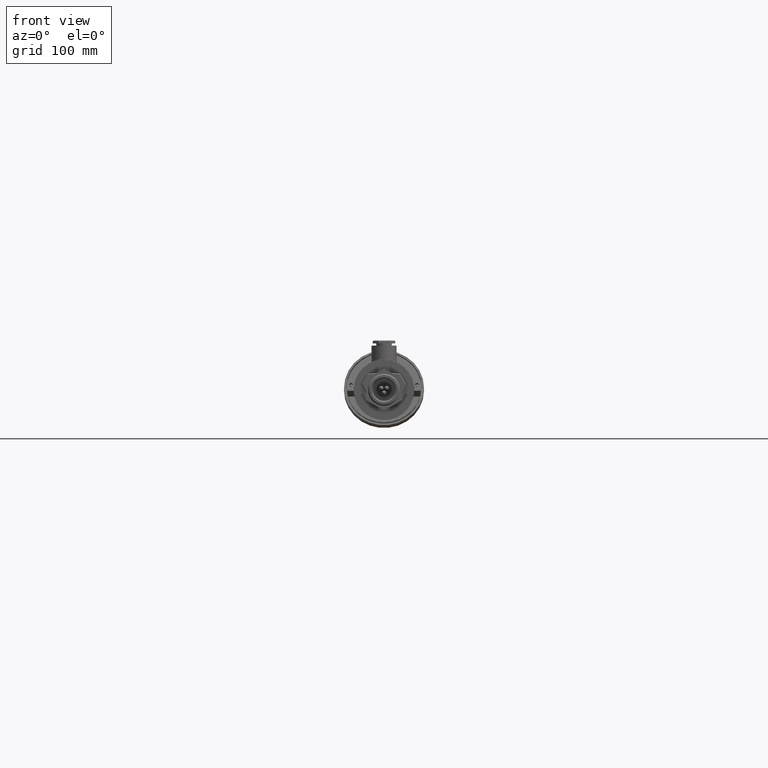
[diagram: clean part render]
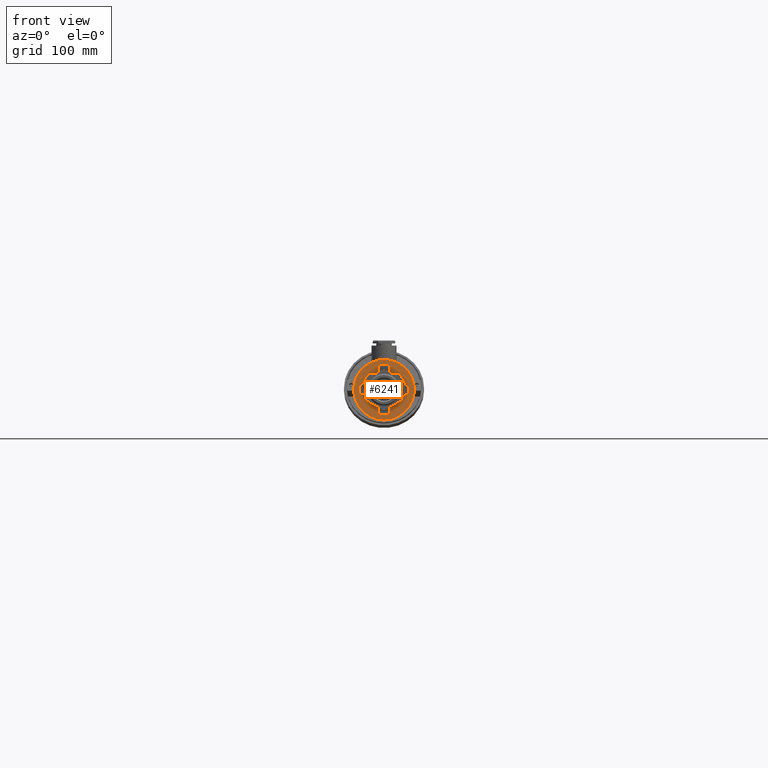
[diagram: same view with one face highlighted and labeled with its STEP entity id]
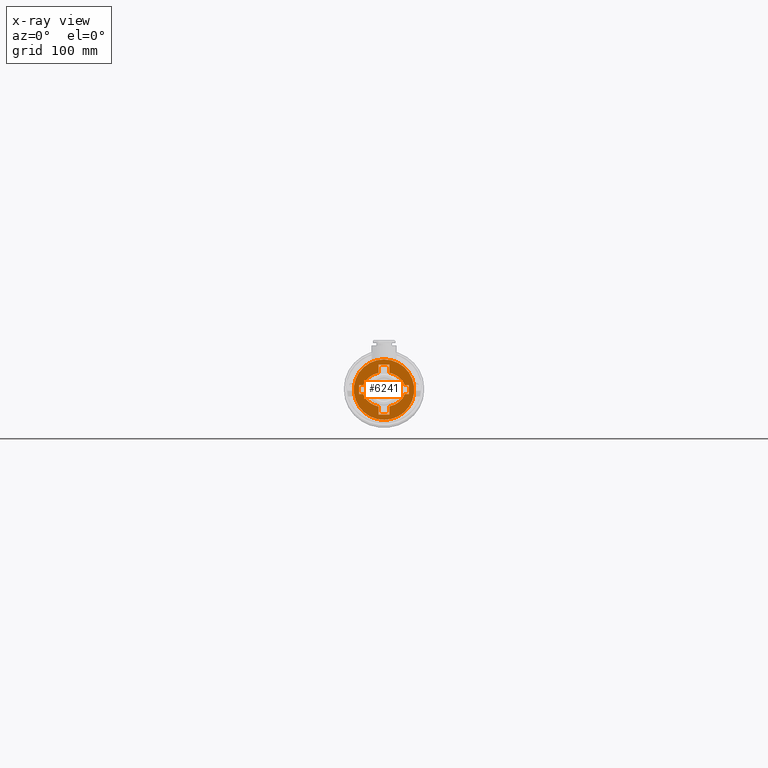
[diagram: x-ray of the same camera — body ghosted, the highlighted face saturated]
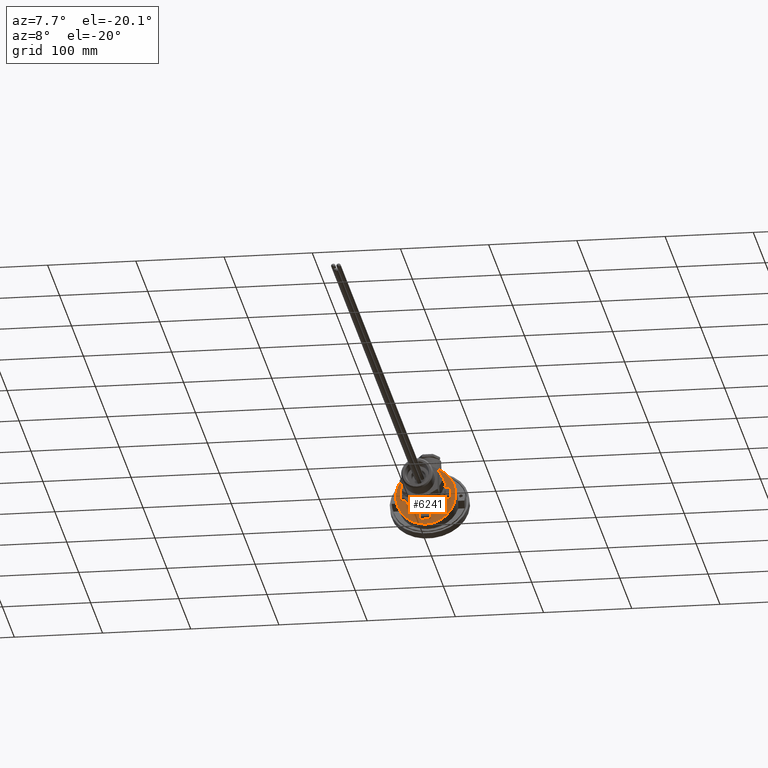
[diagram: same view with one face highlighted and labeled with its STEP entity id]
A machine part, front view. The second image highlights one B-rep face of the part: STEP entity #6241.
The next image is the same camera in x-ray: the body ghosted, the highlighted face saturated — about 0% of this face is hidden behind the body in this view.
A second angle (auxiliary view) of the same face is appended — the face is thin or edge-on in the first view.
In plain terms, the highlighted planar face has unit normal (0, -1, 0).
Its self-contained STEP definition (entity closure, byte-faithful):
#314 = VECTOR ( 'NONE', #881, 1000.000000000000000 ) ;
#327 = VECTOR ( 'NONE', #2448, 1000.000000000000000 ) ;
#520 = CARTESIAN_POINT ( 'NONE',  ( 0.000000000000000000, 37.50000000000000000, 0.000000000000000000 ) ) ;
#615 = DIRECTION ( 'NONE',  ( 0.000000000000000000, -1.000000000000000000, 0.000000000000000000 ) ) ;
#758 = EDGE_CURVE ( 'NONE', #11153, #14423, #6235, .T. ) ;
#881 = DIRECTION ( 'NONE',  ( 0.000000000000000000, 0.000000000000000000, -1.000000000000000000 ) ) ;
#970 = CARTESIAN_POINT ( 'NONE',  ( 0.000000000000000000, 37.50000000000000000, -5.000000000000000000 ) ) ;
#1104 = DIRECTION ( 'NONE',  ( 0.000000000000000000, 0.000000000000000000, -1.000000000000000000 ) ) ;
#1133 = EDGE_CURVE ( 'NONE', #3018, #12216, #4470, .T. ) ;
#1250 = VECTOR ( 'NONE', #8613, 1000.000000000000000 ) ;
#1282 = CARTESIAN_POINT ( 'NONE',  ( -5.999999999999996447, 37.50000000000000000, 18.88079381276115498 ) ) ;
#1331 = CARTESIAN_POINT ( 'NONE',  ( 6.000000000000000000, 37.50000000000000000, 18.88079381276115853 ) ) ;
#1472 = VECTOR ( 'NONE', #6598, 1000.000000000000000 ) ;
#1525 = VERTEX_POINT ( 'NONE', #19318 ) ;
#1706 = CIRCLE ( 'NONE', #14851, 34.00000000000000000 ) ;
#1834 = EDGE_CURVE ( 'NONE', #7920, #6169, #17632, .T. ) ;
#1994 = EDGE_CURVE ( 'NONE', #16947, #4728, #1706, .T. ) ;
#2035 = CARTESIAN_POINT ( 'NONE',  ( 23.19763301534864297, 37.50000000000000000, -4.999999999999955591 ) ) ;
#2047 = ORIENTED_EDGE ( 'NONE', *, *, #1994, .T. ) ;
#2448 = DIRECTION ( 'NONE',  ( -1.000000000000000000, 0.000000000000000000, 0.000000000000000000 ) ) ;
#2533 = CARTESIAN_POINT ( 'NONE',  ( 0.000000000000000000, 37.50000000000000000, -34.00000000000000000 ) ) ;
#2567 = EDGE_CURVE ( 'NONE', #4728, #16947, #17860, .T. ) ;
#2601 = CARTESIAN_POINT ( 'NONE',  ( -14.60944205950087671, 37.50000000000000000, -17.07464825311283008 ) ) ;
#2799 = EDGE_CURVE ( 'NONE', #1525, #14423, #10911, .T. ) ;
#2986 = EDGE_CURVE ( 'NONE', #10569, #5831, #14325, .T. ) ;
#3018 = VERTEX_POINT ( 'NONE', #14235 ) ;
#3091 = ORIENTED_EDGE ( 'NONE', *, *, #2799, .F. ) ;
#3104 = VERTEX_POINT ( 'NONE', #5984 ) ;
#3208 = DIRECTION ( 'NONE',  ( 0.000000000000000000, 0.000000000000000000, -1.000000000000000000 ) ) ;
#3614 = CARTESIAN_POINT ( 'NONE',  ( 0.000000000000000000, 37.50000000000000000, 4.999999999999944045 ) ) ;
#3786 = PLANE ( 'NONE',  #9130 ) ;
#3861 = CARTESIAN_POINT ( 'NONE',  ( -28.00000000000000000, 37.50000000000000000, 0.000000000000000000 ) ) ;
#3893 = FACE_BOUND ( 'NONE', #15734, .T. ) ;
#3944 = EDGE_CURVE ( 'NONE', #13167, #15300, #14125, .T. ) ;
#4313 = CARTESIAN_POINT ( 'NONE',  ( -23.19763301534863942, 37.50000000000000000, 4.999999999999997335 ) ) ;
#4458 = CARTESIAN_POINT ( 'NONE',  ( 20.91768595780440876, 37.50000000000000000, -11.98305031083721239 ) ) ;
#4470 = LINE ( 'NONE', #15140, #16849 ) ;
#4693 = DIRECTION ( 'NONE',  ( 0.000000000000000000, 0.000000000000000000, -1.000000000000000000 ) ) ;
#4728 = VERTEX_POINT ( 'NONE', #2533 ) ;
#4936 = CARTESIAN_POINT ( 'NONE',  ( -28.00000000000000000, 37.50000000000000000, 5.000000000000000000 ) ) ;
#4956 = CARTESIAN_POINT ( 'NONE',  ( 28.00000000000000000, 37.50000000000000000, 0.000000000000000000 ) ) ;
#5067 = FACE_OUTER_BOUND ( 'NONE', #9813, .T. ) ;
#5080 = DIRECTION ( 'NONE',  ( 0.000000000000000000, 0.000000000000000000, -1.000000000000000000 ) ) ;
#5293 = CARTESIAN_POINT ( 'NONE',  ( -6.000000000000000000, 37.50000000000000000, -37.96109933179273099 ) ) ;
#5337 = ORIENTED_EDGE ( 'NONE', *, *, #9786, .F. ) ;
#5482 = CARTESIAN_POINT ( 'NONE',  ( -5.999999999999996447, 37.50000000000000000, 18.88079381276115498 ) ) ;
#5485 = ORIENTED_EDGE ( 'NONE', *, *, #15657, .T. ) ;
#5623 = ORIENTED_EDGE ( 'NONE', *, *, #18279, .T. ) ;
#5641 = CARTESIAN_POINT ( 'NONE',  ( -5.999999999999998224, 37.50000000000000000, -18.88079381276115853 ) ) ;
#5812 = CARTESIAN_POINT ( 'NONE',  ( 6.000000000000001776, 37.50000000000000000, -18.88079381276114432 ) ) ;
#5831 = VERTEX_POINT ( 'NONE', #16948 ) ;
#5847 = VERTEX_POINT ( 'NONE', #2035 ) ;
#5984 = CARTESIAN_POINT ( 'NONE',  ( -5.999999999999998224, 37.50000000000000000, -18.88079381276115853 ) ) ;
#6156 = ORIENTED_EDGE ( 'NONE', *, *, #3944, .F. ) ;
#6169 = VERTEX_POINT ( 'NONE', #12695 ) ;
#6235 = LINE ( 'NONE', #16532, #6526 ) ;
#6241 = ADVANCED_FACE ( 'NONE', ( #3893, #5067 ), #3786, .T. ) ;
#6242 = ORIENTED_EDGE ( 'NONE', *, *, #10040, .F. ) ;
#6512 = VECTOR ( 'NONE', #15973, 1000.000000000000000 ) ;
#6526 = VECTOR ( 'NONE', #3208, 1000.000000000000000 ) ;
#6598 = DIRECTION ( 'NONE',  ( 1.000000000000000000, 0.000000000000000000, 0.000000000000000000 ) ) ;
#7036 = EDGE_CURVE ( 'NONE', #15300, #3018, #17927, .T. ) ;
#7188 = CARTESIAN_POINT ( 'NONE',  ( 0.000000000000000000, 37.50000000000000000, 0.000000000000000000 ) ) ;
#7638 = VERTEX_POINT ( 'NONE', #15935 ) ;
#7920 = VERTEX_POINT ( 'NONE', #1282 ) ;
#8166 = DIRECTION ( 'NONE',  ( -1.000000000000000000, 0.000000000000000000, 0.000000000000000000 ) ) ;
#8475 = DIRECTION ( 'NONE',  ( 0.000000000000000000, -1.000000000000000000, 0.000000000000000000 ) ) ;
#8526 = CARTESIAN_POINT ( 'NONE',  ( -6.000000000000000000, 37.50000000000000000, 28.00000000000000000 ) ) ;
#8613 = DIRECTION ( 'NONE',  ( 0.000000000000000000, 0.000000000000000000, 1.000000000000000000 ) ) ;
#8652 = ORIENTED_EDGE ( 'NONE', *, *, #14439, .F. ) ;
#8947 = VERTEX_POINT ( 'NONE', #9167 ) ;
#9089 = ORIENTED_EDGE ( 'NONE', *, *, #758, .T. ) ;
#9130 = AXIS2_PLACEMENT_3D ( 'NONE', #520, #615, #9863 ) ;
#9167 = CARTESIAN_POINT ( 'NONE',  ( 28.00000000000000000, 37.50000000000000000, -4.999999999999944045 ) ) ;
#9303 = EDGE_CURVE ( 'NONE', #7920, #12216, #14876, .T. ) ;
#9502 = EDGE_CURVE ( 'NONE', #3104, #1525, #12223, .T. ) ;
#9786 = EDGE_CURVE ( 'NONE', #7638, #3104, #16242, .T. ) ;
#9813 = EDGE_LOOP ( 'NONE', ( #15544, #2047 ) ) ;
#9863 = DIRECTION ( 'NONE',  ( 0.000000000000000000, -0.000000000000000000, -1.000000000000000000 ) ) ;
#10022 = EDGE_CURVE ( 'NONE', #5847, #8947, #12580, .T. ) ;
#10040 = EDGE_CURVE ( 'NONE', #8947, #18580, #14061, .T. ) ;
#10141 = CARTESIAN_POINT ( 'NONE',  ( 23.19763301534864297, 37.50000000000000000, -4.999999999999955591 ) ) ;
#10200 = CARTESIAN_POINT ( 'NONE',  ( -14.60944205950086783, 37.50000000000000000, 17.07464825311282297 ) ) ;
#10249 = ORIENTED_EDGE ( 'NONE', *, *, #2986, .F. ) ;
#10377 = ORIENTED_EDGE ( 'NONE', *, *, #7036, .F. ) ;
#10394 = ORIENTED_EDGE ( 'NONE', *, *, #9303, .T. ) ;
#10541 = CARTESIAN_POINT ( 'NONE',  ( 23.19763301534865008, 37.50000000000000000, 4.999999999999941380 ) ) ;
#10569 = VERTEX_POINT ( 'NONE', #4936 ) ;
#10729 = DIRECTION ( 'NONE',  ( -1.000000000000000000, 0.000000000000000000, 0.000000000000000000 ) ) ;
#10732 = CARTESIAN_POINT ( 'NONE',  ( 6.000000000000001776, 37.50000000000000000, -28.00000000000000000 ) ) ;
#10822 = DIRECTION ( 'NONE',  ( 1.000000000000000000, 0.000000000000000000, 0.000000000000000000 ) ) ;
#10911 = LINE ( 'NONE', #12473, #11588 ) ;
#11011 = CARTESIAN_POINT ( 'NONE',  ( 23.19763301534865008, 37.50000000000000000, 4.999999999999941380 ) ) ;
#11153 = VERTEX_POINT ( 'NONE', #12813 ) ;
#11588 = VECTOR ( 'NONE', #10822, 1000.000000000000000 ) ;
#11708 = VECTOR ( 'NONE', #8166, 1000.000000000000000 ) ;
#11821 = VECTOR ( 'NONE', #17193, 1000.000000000000000 ) ;
#11907 = VECTOR ( 'NONE', #15181, 1000.000000000000000 ) ;
#12216 = VERTEX_POINT ( 'NONE', #8526 ) ;
#12223 = LINE ( 'NONE', #18119, #14651 ) ;
#12393 = LINE ( 'NONE', #17099, #11708 ) ;
#12473 = CARTESIAN_POINT ( 'NONE',  ( -5.999999999999998224, 37.50000000000000000, -28.00000000000000000 ) ) ;
#12580 = LINE ( 'NONE', #15724, #1472 ) ;
#12695 = CARTESIAN_POINT ( 'NONE',  ( -23.19763301534863942, 37.50000000000000000, 4.999999999999997335 ) ) ;
#12813 = CARTESIAN_POINT ( 'NONE',  ( 6.000000000000001776, 37.50000000000000000, -18.88079381276114432 ) ) ;
#13167 = VERTEX_POINT ( 'NONE', #11011 ) ;
#13180 = CARTESIAN_POINT ( 'NONE',  ( -20.91768595780440521, 37.50000000000000000, -11.98305031083723193 ) ) ;
#13326 = CARTESIAN_POINT ( 'NONE',  ( -20.91768595780439810, 37.50000000000000000, 11.98305031083723371 ) ) ;
#13553 = ORIENTED_EDGE ( 'NONE', *, *, #10022, .F. ) ;
#13567 = CARTESIAN_POINT ( 'NONE',  ( 20.91768595780443007, 37.50000000000000000, 11.98305031083720706 ) ) ;
#13693 = ORIENTED_EDGE ( 'NONE', *, *, #1834, .F. ) ;
#14019 = ORIENTED_EDGE ( 'NONE', *, *, #17726, .F. ) ;
#14061 = LINE ( 'NONE', #4956, #11821 ) ;
#14125 =( BOUNDED_CURVE ( )  B_SPLINE_CURVE ( 3, ( #10541, #13567, #16306, #17887 ),
 .UNSPECIFIED., .F., .F. ) 
 B_SPLINE_CURVE_WITH_KNOTS ( ( 4, 4 ),
 ( 0.2593064562727731004, 1.318116071652817300 ),
 .UNSPECIFIED. ) 
 CURVE ( )  GEOMETRIC_REPRESENTATION_ITEM ( )  RATIONAL_B_SPLINE_CURVE ( ( 1.000000000000000000, 0.9087385381518293670, 0.9087385381518293670, 1.000000000000000000 ) ) 
 REPRESENTATION_ITEM ( '' )  );
#14235 = CARTESIAN_POINT ( 'NONE',  ( 6.000000000000000000, 37.50000000000000000, 28.00000000000000000 ) ) ;
#14325 = LINE ( 'NONE', #3861, #314 ) ;
#14397 = AXIS2_PLACEMENT_3D ( 'NONE', #7188, #8475, #1104 ) ;
#14423 = VERTEX_POINT ( 'NONE', #10732 ) ;
#14439 = EDGE_CURVE ( 'NONE', #6169, #10569, #12393, .T. ) ;
#14651 = VECTOR ( 'NONE', #4693, 1000.000000000000000 ) ;
#14851 = AXIS2_PLACEMENT_3D ( 'NONE', #18503, #15368, #5080 ) ;
#14875 = CARTESIAN_POINT ( 'NONE',  ( 6.000000000000000000, 37.50000000000000000, -37.96109933179273099 ) ) ;
#14876 = LINE ( 'NONE', #5293, #6512 ) ;
#14929 = CARTESIAN_POINT ( 'NONE',  ( 14.60944205950088026, 37.50000000000000000, -17.07464825311282297 ) ) ;
#14971 = CARTESIAN_POINT ( 'NONE',  ( 4.163799117101000559E-15, 37.50000000000000000, 34.00000000000000000 ) ) ;
#14975 = LINE ( 'NONE', #3614, #11907 ) ;
#15140 = CARTESIAN_POINT ( 'NONE',  ( 6.000000000000000000, 37.50000000000000000, 28.00000000000000000 ) ) ;
#15181 = DIRECTION ( 'NONE',  ( 1.000000000000000000, 0.000000000000000000, 0.000000000000000000 ) ) ;
#15300 = VERTEX_POINT ( 'NONE', #1331 ) ;
#15368 = DIRECTION ( 'NONE',  ( 0.000000000000000000, -1.000000000000000000, 0.000000000000000000 ) ) ;
#15544 = ORIENTED_EDGE ( 'NONE', *, *, #2567, .T. ) ;
#15657 = EDGE_CURVE ( 'NONE', #7638, #5831, #15974, .T. ) ;
#15724 = CARTESIAN_POINT ( 'NONE',  ( 0.000000000000000000, 37.50000000000000000, -4.999999999999944045 ) ) ;
#15734 = EDGE_LOOP ( 'NONE', ( #5485, #10249, #8652, #13693, #10394, #15857, #10377, #6156, #5623, #6242, #13553, #14019, #9089, #3091, #18438, #5337 ) ) ;
#15857 = ORIENTED_EDGE ( 'NONE', *, *, #1133, .F. ) ;
#15935 = CARTESIAN_POINT ( 'NONE',  ( -23.19763301534864297, 37.50000000000000000, -4.999999999999984013 ) ) ;
#15973 = DIRECTION ( 'NONE',  ( 0.000000000000000000, 0.000000000000000000, 1.000000000000000000 ) ) ;
#15974 = LINE ( 'NONE', #970, #327 ) ;
#16242 =( BOUNDED_CURVE ( )  B_SPLINE_CURVE ( 3, ( #18977, #13180, #2601, #5641 ),
 .UNSPECIFIED., .F., .F. ) 
 B_SPLINE_CURVE_WITH_KNOTS ( ( 4, 4 ),
 ( 3.400899109862568714, 4.459708725242610861 ),
 .UNSPECIFIED. ) 
 CURVE ( )  GEOMETRIC_REPRESENTATION_ITEM ( )  RATIONAL_B_SPLINE_CURVE ( ( 1.000000000000000000, 0.9087385381518295890, 0.9087385381518295890, 1.000000000000000000 ) ) 
 REPRESENTATION_ITEM ( '' )  );
#16306 = CARTESIAN_POINT ( 'NONE',  ( 14.60944205950089625, 37.50000000000000000, 17.07464825311281942 ) ) ;
#16532 = CARTESIAN_POINT ( 'NONE',  ( 6.000000000000001776, 37.50000000000000000, 49.50199999999998823 ) ) ;
#16849 = VECTOR ( 'NONE', #10729, 1000.000000000000000 ) ;
#16947 = VERTEX_POINT ( 'NONE', #14971 ) ;
#16948 = CARTESIAN_POINT ( 'NONE',  ( -28.00000000000000000, 37.50000000000000000, -5.000000000000000000 ) ) ;
#17079 =( BOUNDED_CURVE ( )  B_SPLINE_CURVE ( 3, ( #5812, #14929, #4458, #10141 ),
 .UNSPECIFIED., .F., .F. ) 
 B_SPLINE_CURVE_WITH_KNOTS ( ( 4, 4 ),
 ( 4.965069235526767599, 6.023878850906810634 ),
 .UNSPECIFIED. ) 
 CURVE ( )  GEOMETRIC_REPRESENTATION_ITEM ( )  RATIONAL_B_SPLINE_CURVE ( ( 1.000000000000000000, 0.9087385381518295890, 0.9087385381518295890, 1.000000000000000000 ) ) 
 REPRESENTATION_ITEM ( '' )  );
#17099 = CARTESIAN_POINT ( 'NONE',  ( 0.000000000000000000, 37.50000000000000000, 5.000000000000000000 ) ) ;
#17193 = DIRECTION ( 'NONE',  ( -0.000000000000000000, 0.000000000000000000, 1.000000000000000000 ) ) ;
#17623 = CARTESIAN_POINT ( 'NONE',  ( 28.00000000000000000, 37.50000000000000000, 4.999999999999944045 ) ) ;
#17632 =( BOUNDED_CURVE ( )  B_SPLINE_CURVE ( 3, ( #5482, #10200, #13326, #4313 ),
 .UNSPECIFIED., .F., .F. ) 
 B_SPLINE_CURVE_WITH_KNOTS ( ( 4, 4 ),
 ( 1.823476581936974483, 2.882286197317015297 ),
 .UNSPECIFIED. ) 
 CURVE ( )  GEOMETRIC_REPRESENTATION_ITEM ( )  RATIONAL_B_SPLINE_CURVE ( ( 1.000000000000000000, 0.9087385381518299221, 0.9087385381518299221, 1.000000000000000000 ) ) 
 REPRESENTATION_ITEM ( '' )  );
#17726 = EDGE_CURVE ( 'NONE', #11153, #5847, #17079, .T. ) ;
#17860 = CIRCLE ( 'NONE', #14397, 34.00000000000000000 ) ;
#17887 = CARTESIAN_POINT ( 'NONE',  ( 6.000000000000000000, 37.50000000000000000, 18.88079381276115853 ) ) ;
#17927 = LINE ( 'NONE', #14875, #1250 ) ;
#18119 = CARTESIAN_POINT ( 'NONE',  ( -5.999999999999998224, 37.50000000000000000, 49.50199999999998823 ) ) ;
#18279 = EDGE_CURVE ( 'NONE', #13167, #18580, #14975, .T. ) ;
#18438 = ORIENTED_EDGE ( 'NONE', *, *, #9502, .F. ) ;
#18503 = CARTESIAN_POINT ( 'NONE',  ( 0.000000000000000000, 37.50000000000000000, 0.000000000000000000 ) ) ;
#18580 = VERTEX_POINT ( 'NONE', #17623 ) ;
#18977 = CARTESIAN_POINT ( 'NONE',  ( -23.19763301534864297, 37.50000000000000000, -4.999999999999984013 ) ) ;
#19318 = CARTESIAN_POINT ( 'NONE',  ( -5.999999999999998224, 37.50000000000000000, -28.00000000000000000 ) ) ;